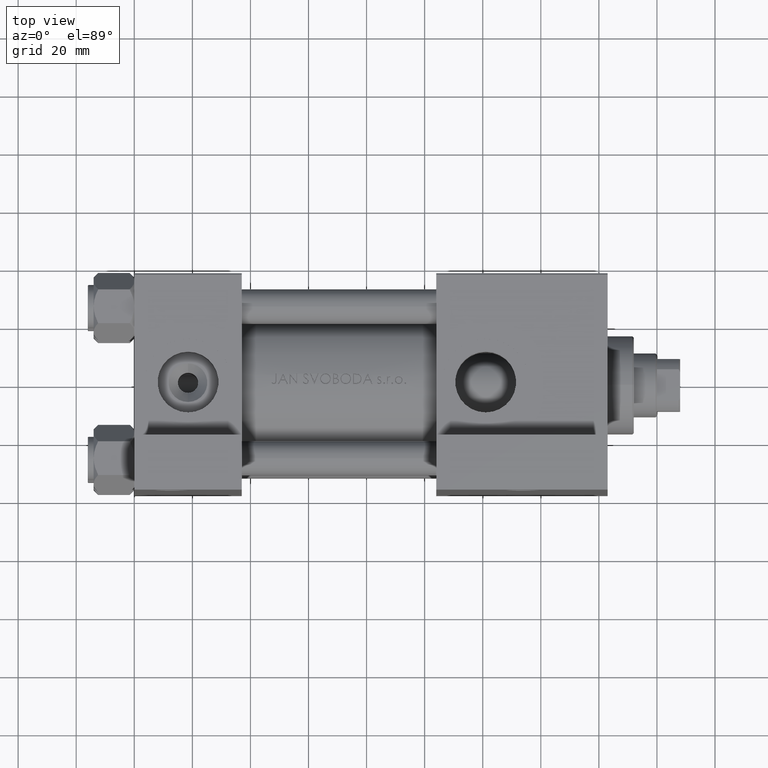
[diagram: clean part render]
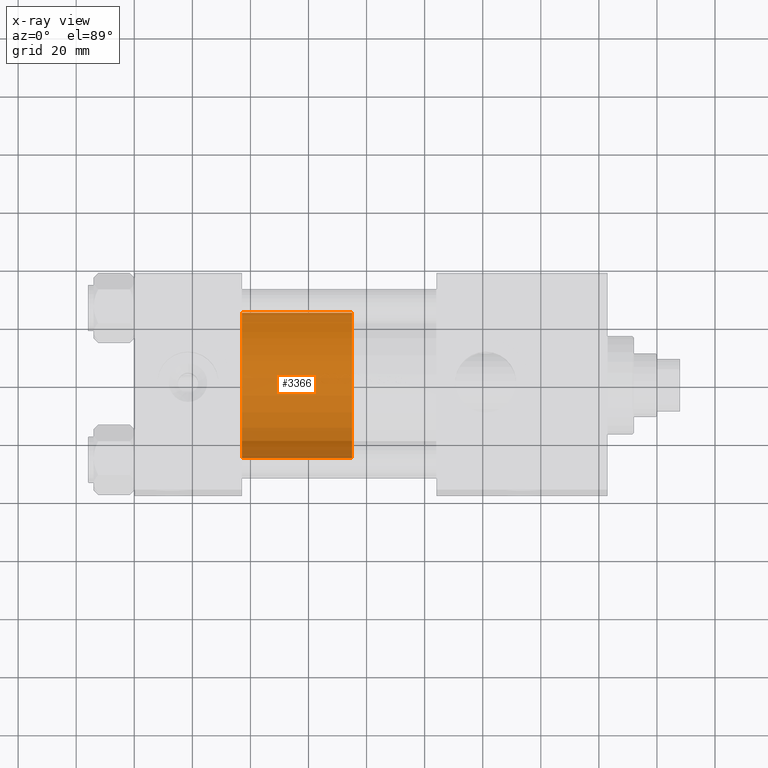
[diagram: x-ray — body ghosted, one internal face saturated and labeled with its STEP entity id]
A machine part, top view, then the same camera in x-ray: the body is ghosted and one INTERNAL B-rep face — a face not visible from any outside direction — is saturated and labeled: STEP entity #3366.
In plain terms, the highlighted cylindrical surface (partial cylindrical patch) has radius 25 mm, axis along (-1, 0, 0).
Its self-contained STEP definition (entity closure, byte-faithful):
#619 = CARTESIAN_POINT ( 'NONE',  ( -25.00000000000000000, 0.000000000000000000, 38.00000000000000000 ) ) ;
#779 = EDGE_CURVE ( 'NONE', #24788, #23901, #43324, .T. ) ;
#2060 = ORIENTED_EDGE ( 'NONE', *, *, #6015, .F. ) ;
#3366 = ADVANCED_FACE ( 'NONE', ( #11771 ), #45899, .T. ) ;
#5327 = VERTEX_POINT ( 'NONE', #16256 ) ;
#5984 = AXIS2_PLACEMENT_3D ( 'NONE', #22896, #11697, #15674 ) ;
#6015 = EDGE_CURVE ( 'NONE', #14490, #5327, #27782, .T. ) ;
#7017 = ORIENTED_EDGE ( 'NONE', *, *, #38923, .F. ) ;
#7293 = DIRECTION ( 'NONE',  ( -1.000000000000000000, 0.000000000000000000, 0.000000000000000000 ) ) ;
#7785 = DIRECTION ( 'NONE',  ( -0.000000000000000000, -0.000000000000000000, -1.000000000000000000 ) ) ;
#8024 = CARTESIAN_POINT ( 'NONE',  ( 0.000000000000000000, 0.000000000000000000, 38.00000000000000000 ) ) ;
#8451 = ORIENTED_EDGE ( 'NONE', *, *, #26084, .T. ) ;
#10841 = EDGE_LOOP ( 'NONE', ( #7017, #28641, #8451, #2060 ) ) ;
#11697 = DIRECTION ( 'NONE',  ( 0.000000000000000000, 0.000000000000000000, 1.000000000000000000 ) ) ;
#11771 = FACE_OUTER_BOUND ( 'NONE', #10841, .T. ) ;
#14490 = VERTEX_POINT ( 'NONE', #619 ) ;
#15207 = AXIS2_PLACEMENT_3D ( 'NONE', #16230, #34921, #31435 ) ;
#15674 = DIRECTION ( 'NONE',  ( 1.000000000000000000, 0.000000000000000000, 0.000000000000000000 ) ) ;
#16230 = CARTESIAN_POINT ( 'NONE',  ( 0.000000000000000000, 0.000000000000000000, 0.000000000000000000 ) ) ;
#16256 = CARTESIAN_POINT ( 'NONE',  ( -25.00000000000000000, 0.000000000000000000, 0.000000000000000000 ) ) ;
#19566 = DIRECTION ( 'NONE',  ( -0.000000000000000000, -0.000000000000000000, -1.000000000000000000 ) ) ;
#22896 = CARTESIAN_POINT ( 'NONE',  ( 0.000000000000000000, 0.000000000000000000, 38.00000000000000000 ) ) ;
#23901 = VERTEX_POINT ( 'NONE', #34653 ) ;
#24788 = VERTEX_POINT ( 'NONE', #33265 ) ;
#24891 = DIRECTION ( 'NONE',  ( -0.000000000000000000, -0.000000000000000000, -1.000000000000000000 ) ) ;
#26084 = EDGE_CURVE ( 'NONE', #23901, #5327, #44643, .T. ) ;
#26786 = CARTESIAN_POINT ( 'NONE',  ( -25.00000000000000000, 0.000000000000000000, 38.00000000000000000 ) ) ;
#27782 = LINE ( 'NONE', #26786, #39359 ) ;
#28641 = ORIENTED_EDGE ( 'NONE', *, *, #779, .T. ) ;
#29054 = CIRCLE ( 'NONE', #5984, 25.00000000000000000 ) ;
#29717 = AXIS2_PLACEMENT_3D ( 'NONE', #8024, #7785, #7293 ) ;
#31435 = DIRECTION ( 'NONE',  ( 1.000000000000000000, 0.000000000000000000, 0.000000000000000000 ) ) ;
#32605 = VECTOR ( 'NONE', #24891, 1000.000000000000000 ) ;
#33265 = CARTESIAN_POINT ( 'NONE',  ( 25.00000000000000000, 3.061616997868383043E-15, 38.00000000000000000 ) ) ;
#34653 = CARTESIAN_POINT ( 'NONE',  ( 25.00000000000000000, 3.061616997868383043E-15, 0.000000000000000000 ) ) ;
#34921 = DIRECTION ( 'NONE',  ( 0.000000000000000000, 0.000000000000000000, 1.000000000000000000 ) ) ;
#38923 = EDGE_CURVE ( 'NONE', #24788, #14490, #29054, .T. ) ;
#39359 = VECTOR ( 'NONE', #19566, 1000.000000000000000 ) ;
#39589 = CARTESIAN_POINT ( 'NONE',  ( 25.00000000000000000, 3.061616997868383043E-15, 38.00000000000000000 ) ) ;
#43324 = LINE ( 'NONE', #39589, #32605 ) ;
#44643 = CIRCLE ( 'NONE', #15207, 25.00000000000000000 ) ;
#45899 = CYLINDRICAL_SURFACE ( 'NONE', #29717, 25.00000000000000000 ) ;